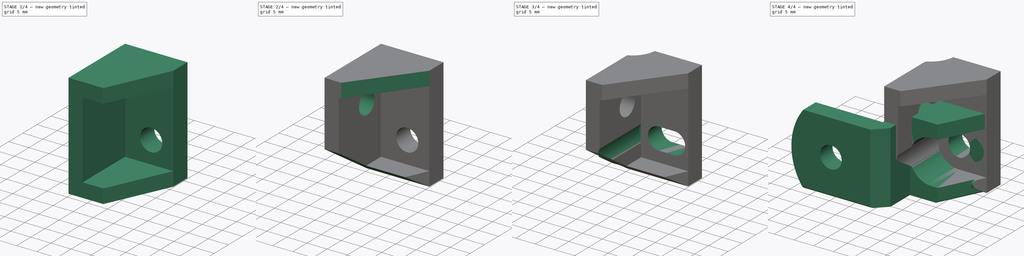
[diagram: build sequence overview — one tinted view per stage of 4, left to right]
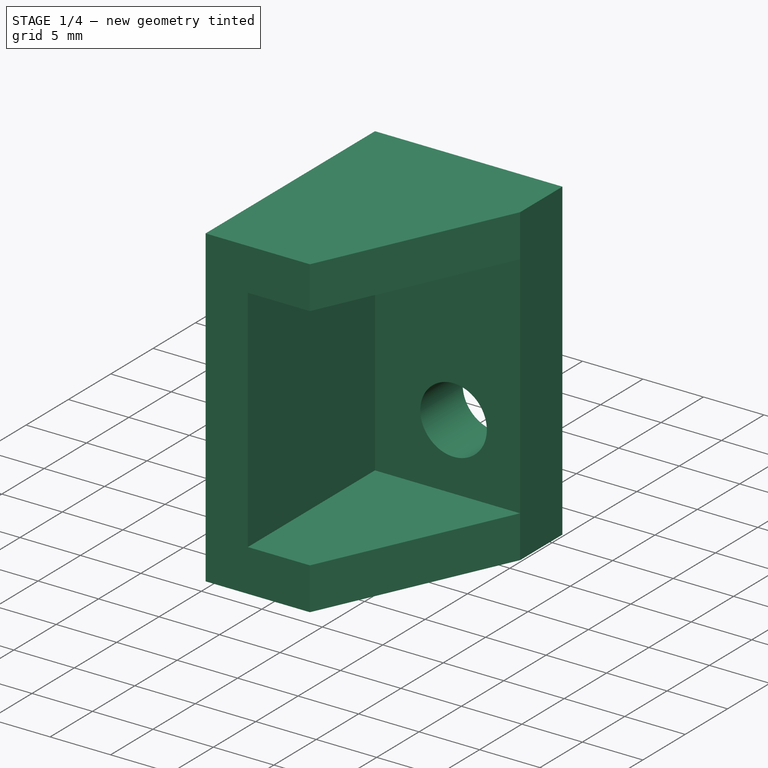
[diagram: stage 1 of 4 — iso view after this stage's code; geometry added in this stage tinted green]
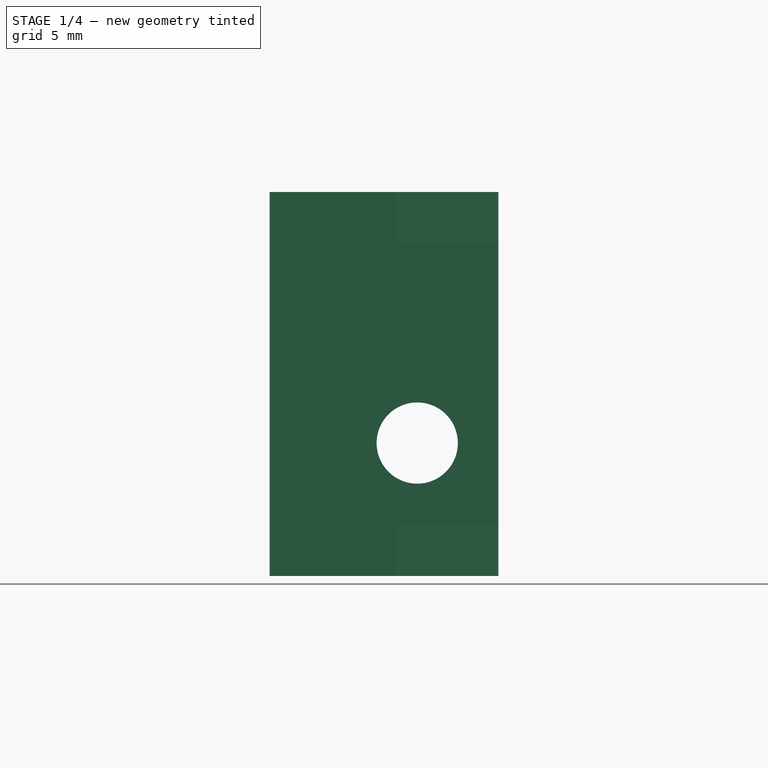
[diagram: stage 1 of 4 — front view after this stage's code; geometry added in this stage tinted green]
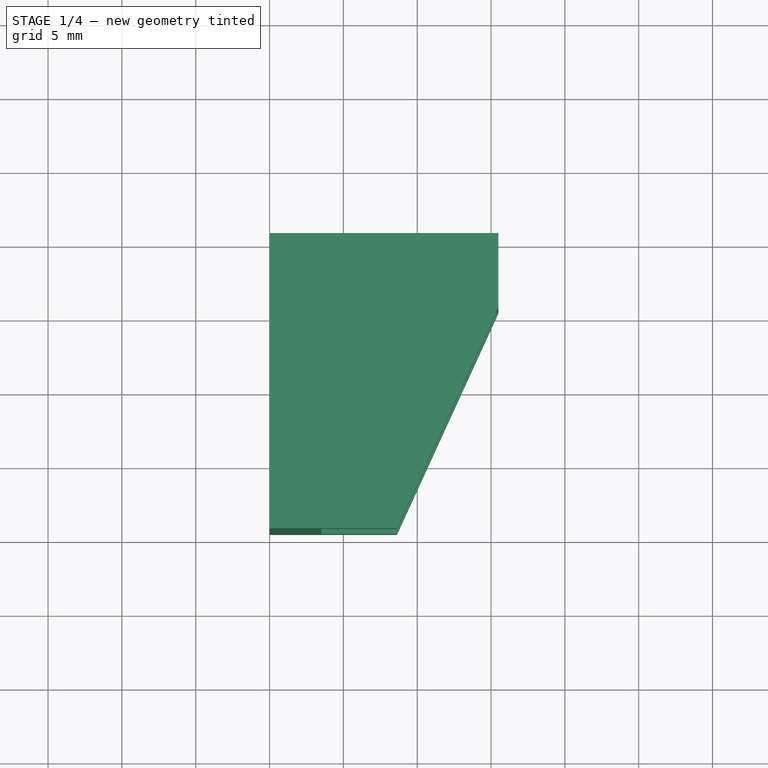
[diagram: stage 1 of 4 — top view after this stage's code; geometry added in this stage tinted green]
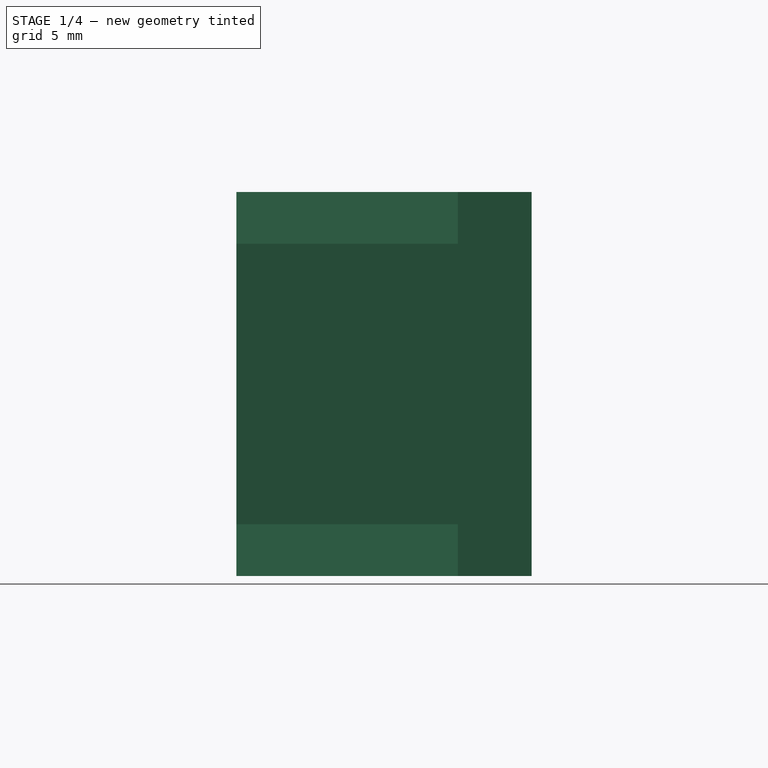
[diagram: stage 1 of 4 — right view after this stage's code; geometry added in this stage tinted green]
FCSTD DOCUMENT  (FreeCAD 0.18R4 (GitTag))
Label: electronics_chassis_mount_back_v1.1
License: All rights reserved
LicenseURL: http://en.wikipedia.org/wiki/All_rights_reserved
objects: Sketcher::SketchObject×10, PartDesign::Pocket×8, PartDesign::Pad×2, Part::FeaturePython×1, App::MeasureDistance×1, PartDesign::Chamfer×1, PartDesign::Fillet×1, PartDesign::Body×1
note: 34 computed .brp shape members not serialized (recipe doc carries the construction recipe); baked Part::Feature solids carry a one-line shape summary decoded from their .brp

FEATURE [Sketcher::SketchObject] Sketch
  MapMode = 5
  Support = -> [XY_Plane]
  sketch-geometry (5):
    g0: LineSegment StartX=0 StartY=20.5 StartZ=0 EndX=15.5 EndY=20.5 EndZ=0
    g1: LineSegment StartX=15.5 StartY=20.5 StartZ=0 EndX=15.5 EndY=15.5 EndZ=0
    g2: LineSegment StartX=15.5 StartY=15.5 StartZ=0 EndX=8.625 EndY=0.5 EndZ=0
    g3: LineSegment StartX=8.625 StartY=0.5 StartZ=0 EndX=0 EndY=0.5 EndZ=0
    g4: LineSegment StartX=0 StartY=0.5 StartZ=0 EndX=0 EndY=20.5 EndZ=0
  constraints (15):
    c: PointOnObject(g0,g-2)
    c: Horizontal(g0)
    c: Coincident(g0,g1)
    c: Vertical(g1)
    c: Coincident(g1,g2)
    c: Coincident(g2,g3)
    c: PointOnObject(g3,g-2)
    c: Horizontal(g3)
    c: Coincident(g3,g4)
    c: Coincident(g4,g0)
    c: DistanceY(g4,g4) = 20
    c: DistanceY(g3) = 0.5
    c: DistanceX(g0,g0) = 15.5
    c: DistanceY(g1,g1) = 5
    c: DistanceX(g3,g3) = 8.625
FEATURE [PartDesign::Pad] Pad
  Length = 26
  Length2 = 100
  Profile = -> Sketch
  Type = 0
FEATURE [Sketcher::SketchObject] Sketch001
  ExternalGeometry = -> [Pad]
  MapMode = 5
  Placement = pos=(0,0.5,0) rot=(1,0,0;1.5708rad)
  Support = -> [Pad]
  sketch-geometry (4):
    g0: LineSegment StartX=15.5 StartY=3.5 StartZ=0 EndX=3.5 EndY=3.5 EndZ=0
    g1: LineSegment StartX=3.5 StartY=3.5 StartZ=0 EndX=3.5 EndY=22.5 EndZ=0
    g2: LineSegment StartX=3.5 StartY=22.5 StartZ=0 EndX=15.5 EndY=22.5 EndZ=0
    g3: LineSegment StartX=15.5 StartY=22.5 StartZ=0 EndX=15.5 EndY=3.5 EndZ=0
  constraints (12):
    c: Coincident(g0,g1)
    c: Coincident(g1,g2)
    c: Coincident(g2,g3)
    c: Coincident(g3,g0)
    c: Horizontal(g0)
    c: Horizontal(g2)
    c: Vertical(g1)
    c: Vertical(g3)
    c: PointOnObject(g0,g-4)
    c: DistanceY(g-4,g0) = 3.5
    c: DistanceY(g3,g3) = 19
    c: DistanceX(g2,g2) = 12
FEATURE [PartDesign::Pocket] Pocket
  BaseFeature = -> Pad
  Length = 15
  Length2 = 100
  Profile = -> Sketch001
  Type = 0
FEATURE [Sketcher::SketchObject] Sketch003
  ExternalGeometry = -> [Pocket]
  MapMode = 5
  Placement = pos=(0,15.5,-3.4e-15) rot=(1,0,0;1.5708rad)
  Support = -> [Pocket]
  sketch-geometry (1):
    g0: Circle CenterX=10 CenterY=9 CenterZ=0 NormalX=0 NormalY=0 NormalZ=1 AngleXU=0 Radius=2.75
  constraints (3):
    c: Radius(g0) = 2.75
    c: DistanceX(g0) = 10
    c: DistanceY(g-3,g0) = 5.5
FEATURE [PartDesign::Pocket] Pocket001
  BaseFeature = -> Pocket
  Length = 5
  Length2 = 100
  Profile = -> Sketch003
  Type = 0
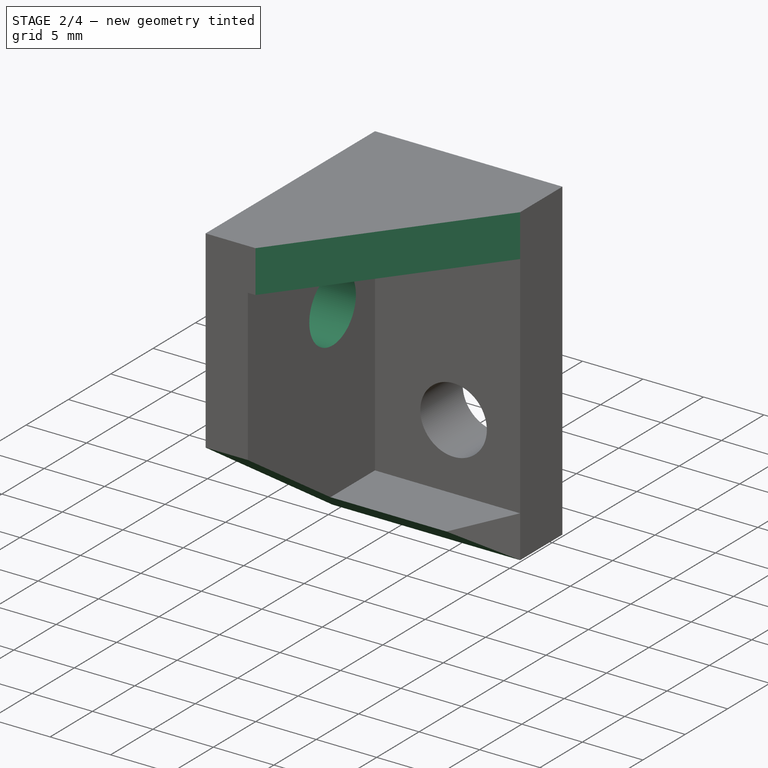
[diagram: stage 2 of 4 — iso view after this stage's code; geometry added in this stage tinted green]
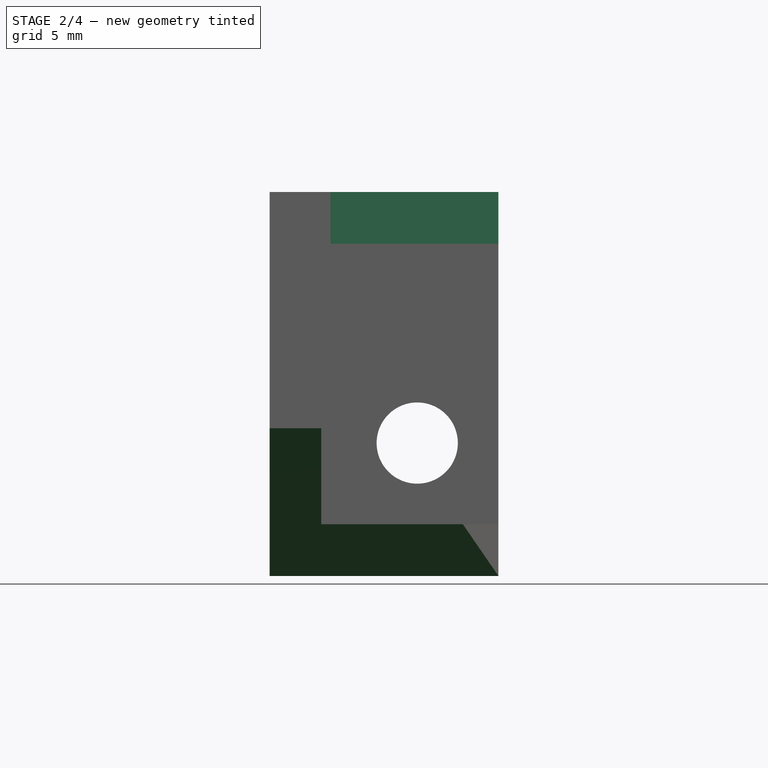
[diagram: stage 2 of 4 — front view after this stage's code; geometry added in this stage tinted green]
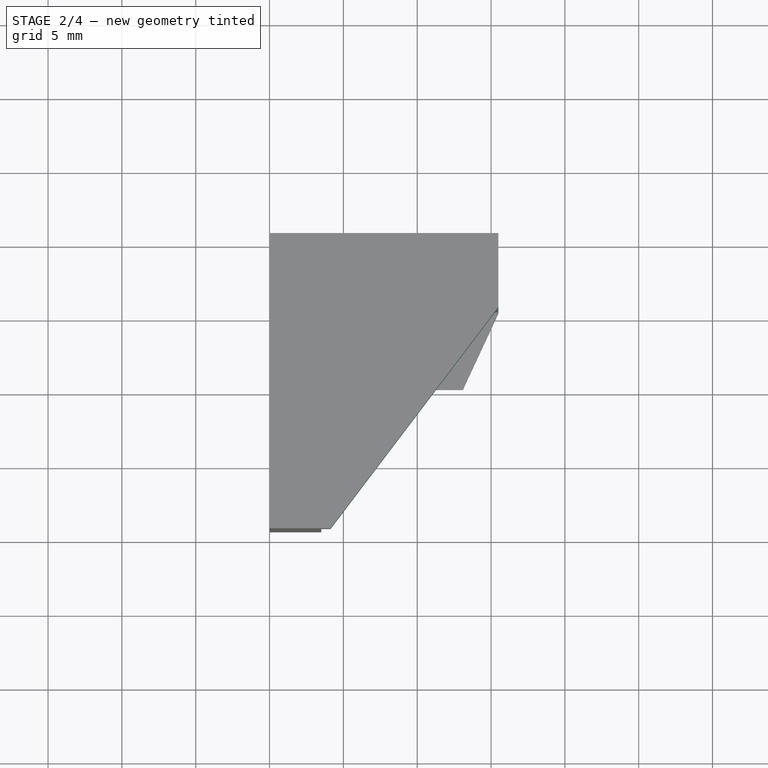
[diagram: stage 2 of 4 — top view after this stage's code; geometry added in this stage tinted green]
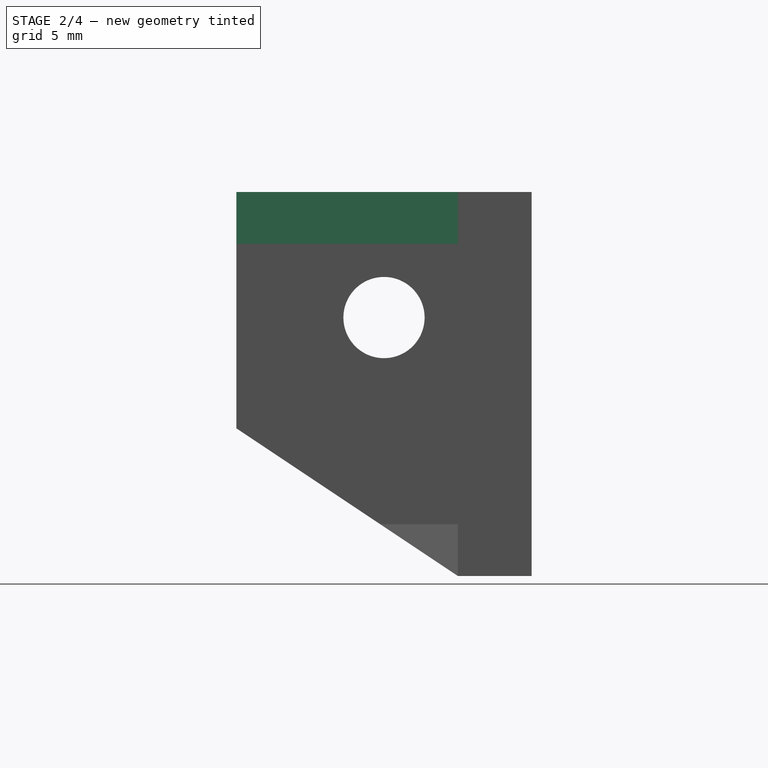
[diagram: stage 2 of 4 — right view after this stage's code; geometry added in this stage tinted green]
FEATURE [Sketcher::SketchObject] Sketch004
  ExternalGeometry = -> [Pocket001]
  MapMode = 5
  Placement = pos=(3.5,0,0) rot=(0.57735,0.57735,0.57735;2.0944rad)
  Support = -> [Pocket001]
  sketch-geometry (2):
    g0: Circle [constr] CenterX=10.5 CenterY=17.5 CenterZ=0 NormalX=0 NormalY=0 NormalZ=1 AngleXU=0 Radius=4.5
    g1: Circle CenterX=10.5 CenterY=17.5 CenterZ=0 NormalX=0 NormalY=0 NormalZ=1 AngleXU=0 Radius=2.75
  constraints (5):
    c: Radius(g0) = 4.5
    c: DistanceY(g0) = 17.5
    c: Coincident(g1,g0)
    c: Radius(g1) = 2.75
    c: DistanceX(g1,g-3) = 10
FEATURE [PartDesign::Pocket] Pocket002
  BaseFeature = -> Pocket001
  Length = 5
  Length2 = 100
  Profile = -> Sketch004
  Type = 0
FEATURE [Sketcher::SketchObject] Sketch005
  MapMode = 5
  Placement = pos=(15.5,0,0) rot=(0.57735,0.57735,0.57735;2.0944rad)
  Support = -> [Pocket002]
  sketch-geometry (3):
    g0: LineSegment StartX=15.5 StartY=0 StartZ=0 EndX=0.5 EndY=10 EndZ=0
    g1: LineSegment StartX=0.5 StartY=10 StartZ=0 EndX=0.5 EndY=0 EndZ=0
    g2: LineSegment StartX=0.5 StartY=0 StartZ=0 EndX=15.5 EndY=0 EndZ=0
  constraints (9):
    c: Coincident(g0,g1)
    c: Coincident(g1,g2)
    c: Coincident(g2,g0)
    c: DistanceY(g1,g1) = 10
    c: PointOnObject(g0,g-1)
    c: DistanceX(g1) = 0.5
    c: DistanceX(g2,g2) = 15
    c: Vertical(g1)
    c: Horizontal(g2)
FEATURE [PartDesign::Pocket] Pocket003
  BaseFeature = -> Pocket002
  Length = 5
  Length2 = 100
  Profile = -> Sketch005
  Type = 1
FEATURE [Sketcher::SketchObject] Sketch006
  ExternalGeometry = -> [Pocket003]
  MapMode = 5
  Placement = pos=(0,0,26) rot=(0,0,1;0rad)
  Support = -> [Pocket003]
  sketch-geometry (3):
    g0: LineSegment StartX=4.125 StartY=0.5 StartZ=0 EndX=15.5 EndY=15.5 EndZ=0
    g1: LineSegment StartX=15.5 StartY=15.5 StartZ=0 EndX=8.625 EndY=0.5 EndZ=0
    g2: LineSegment StartX=8.625 StartY=0.5 StartZ=0 EndX=4.125 EndY=0.5 EndZ=0
  constraints (7):
    c: Coincident(g0,g1)
    c: Coincident(g1,g2)
    c: Coincident(g2,g0)
    c: Coincident(g0,g-3)
    c: Coincident(g1,g-3)
    c: Horizontal(g2)
    c: DistanceX(g2,g2) = 4.5
FEATURE [PartDesign::Pocket] Pocket004
  BaseFeature = -> Pocket003
  Length = 5
  Length2 = 100
  Profile = -> Sketch006
  Type = 0
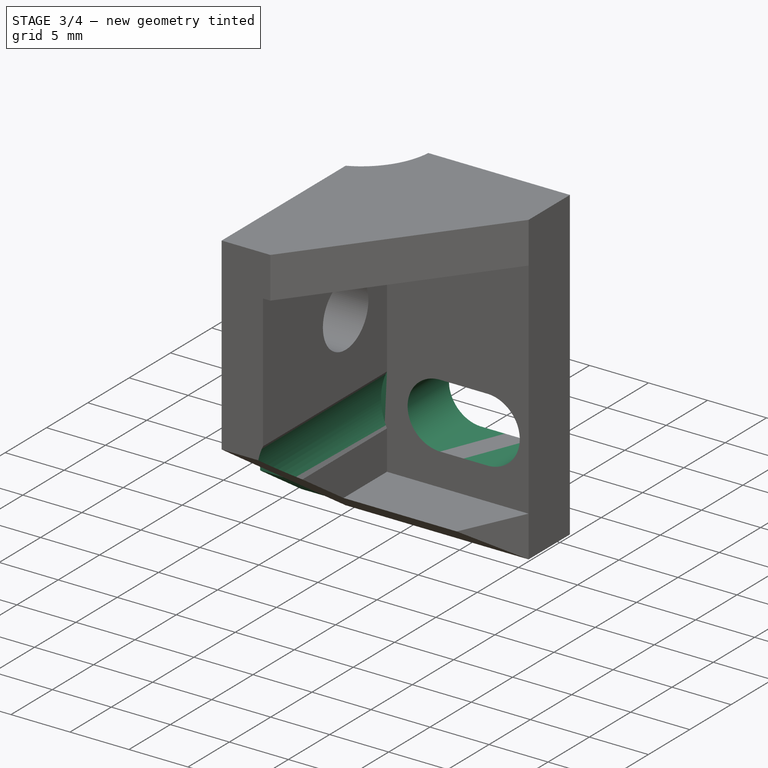
[diagram: stage 3 of 4 — iso view after this stage's code; geometry added in this stage tinted green]
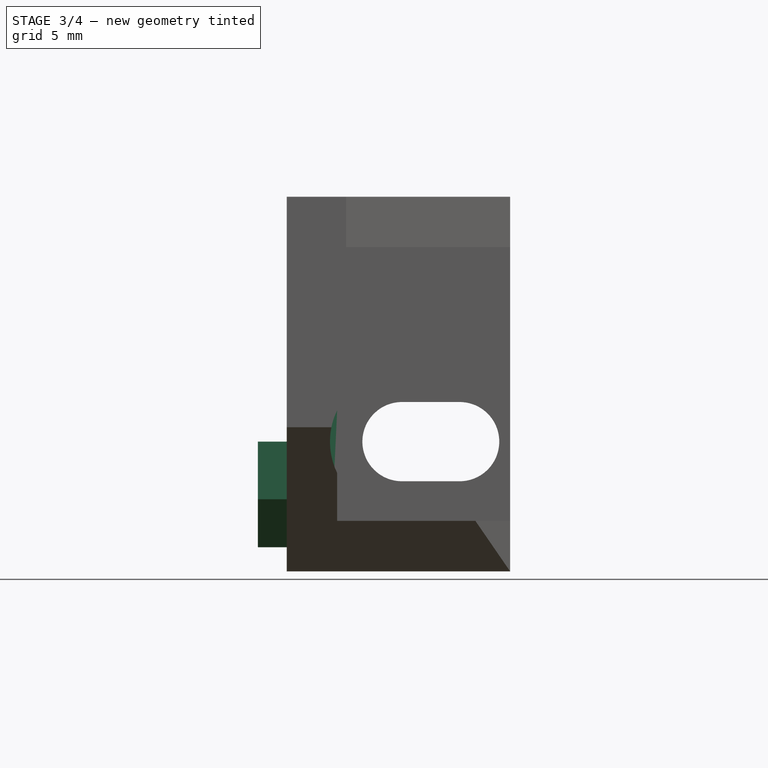
[diagram: stage 3 of 4 — front view after this stage's code; geometry added in this stage tinted green]
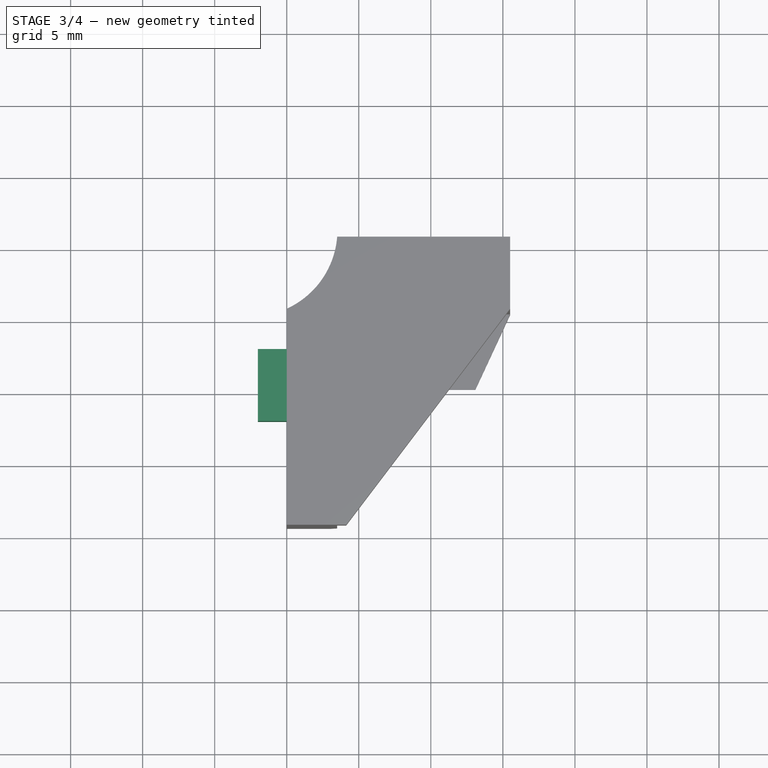
[diagram: stage 3 of 4 — top view after this stage's code; geometry added in this stage tinted green]
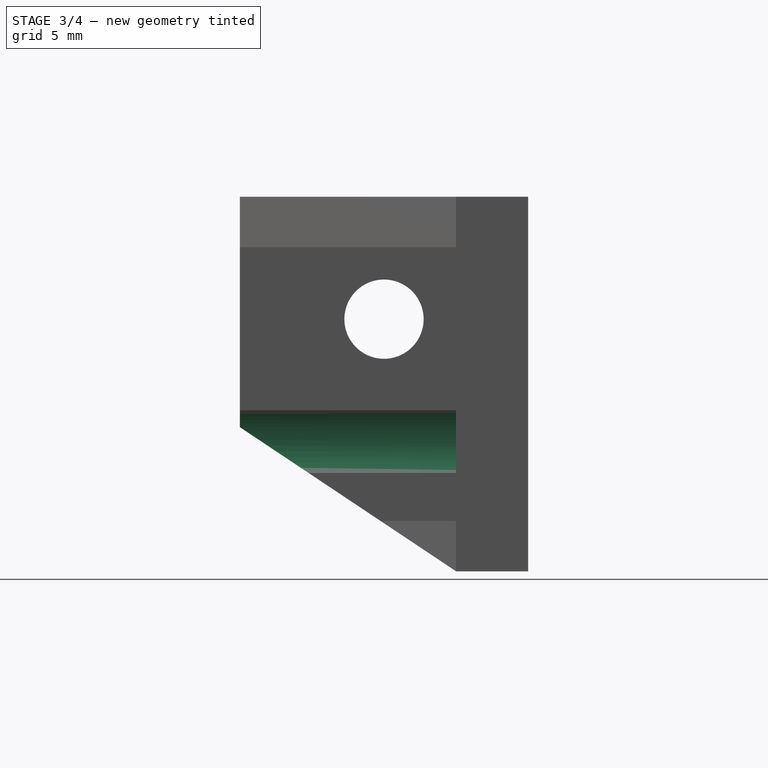
[diagram: stage 3 of 4 — right view after this stage's code; geometry added in this stage tinted green]
FEATURE [Sketcher::SketchObject] Sketch007
  ExternalGeometry = -> [Pocket004]
  MapMode = 5
  Placement = pos=(0,0,0) rot=(0.57735,-0.57735,-0.57735;2.0944rad)
  sketch-geometry (4):
    g0: LineSegment StartX=-13 StartY=1.66667 StartZ=0 EndX=-13 EndY=9 EndZ=0
    g1: LineSegment StartX=-13 StartY=9 StartZ=0 EndX=-8 EndY=9 EndZ=0
    g2: LineSegment StartX=-8 StartY=9 StartZ=0 EndX=-8 EndY=5 EndZ=0
    g3: LineSegment StartX=-8 StartY=5 StartZ=0 EndX=-13 EndY=1.66667 EndZ=0
  constraints (12):
    c: Coincident(g0,g1)
    c: Coincident(g1,g2)
    c: Coincident(g2,g3)
    c: Coincident(g0,g3)
    c: Vertical(g0)
    c: Vertical(g2)
    c: Horizontal(g1)
    c: DistanceX(g1,g1) = 5
    c: DistanceY(g2,g2) = 4
    c: DistanceX(g0,g-4) = 2.5
    c: PointOnObject(g0,g-3)
    c: PointOnObject(g2,g-3)
FEATURE [PartDesign::Pad] Pad001
  BaseFeature = -> Pocket004
  Length = 2
  Length2 = 100
  Profile = -> Sketch007
  Type = 0
FEATURE [Sketcher::SketchObject] Sketch008
  MapMode = 5
  Placement = pos=(0,0,0) rot=(1,0,0;3.14159rad)
  Support = -> [Pad001]
  sketch-geometry (3):
    g0: ArcOfCircle CenterX=-2.48215 CenterY=-20.9625 CenterZ=0 NormalX=0 NormalY=0 NormalZ=1 AngleXU=0 Radius=6 StartAngle=0.0771604 EndAngle=1.14429
    g1: LineSegment StartX=-1.5388e-12 StartY=-15.5 StartZ=0 EndX=-1.5388e-12 EndY=-20.5 EndZ=0
    g2: LineSegment StartX=-1.5388e-12 StartY=-20.5 StartZ=0 EndX=3.5 EndY=-20.5 EndZ=0
  constraints (10):
    c: Coincident(g1,g2)
    c: Coincident(g0,g2)
    c: DistanceX(g2,g2) = 3.5
    c: Radius(g0) = 6
    c: Coincident(g0,g1)
    c: PointOnObject(g1,g-2)
    c: DistanceY(g1) = -20.5
    c: Vertical(g1)
    c: Horizontal(g2)
    c: DistanceY(g1,g1) = 5
FEATURE [App::MeasureDistance] Distance  label="Distance: 2.21 mm"
  Distance = 2.21402
  P1 = (3.5,9.01305,22.4321)
  P2 = (3.5,8.63819,20.25)
FEATURE [PartDesign::Pocket] Pocket005
  BaseFeature = -> Pad001
  Length = 5
  Length2 = 100
  Profile = -> Sketch008
  Type = 1
FEATURE [Sketcher::SketchObject] Sketch009
  ExternalGeometry = -> [Pocket005]
  MapMode = 5
  Placement = pos=(0,15.5,-3.4e-15) rot=(1,0,0;1.5708rad)
  Support = -> [Pocket005]
  sketch-geometry (4):
    g0: ArcOfCircle CenterX=12 CenterY=9 CenterZ=0 NormalX=0 NormalY=0 NormalZ=1 AngleXU=0 Radius=2.75 StartAngle=4.71239 EndAngle=7.85398
    g1: ArcOfCircle CenterX=8 CenterY=9 CenterZ=0 NormalX=0 NormalY=0 NormalZ=1 AngleXU=0 Radius=2.75 StartAngle=1.5708 EndAngle=4.71239
    g2: LineSegment StartX=12 StartY=11.75 StartZ=0 EndX=8 EndY=11.75 EndZ=0
    g3: LineSegment StartX=12 StartY=6.25 StartZ=0 EndX=8 EndY=6.25 EndZ=0
  constraints (10):
    c: Tangent(g0,g3) = 1.5708
    c: Tangent(g0,g2) = -1.5708
    c: Tangent(g2,g1) = -1.5708
    c: Tangent(g3,g1) = 1.5708
    c: Horizontal(g2)
    c: Equal(g0,g1)
    c: DistanceX(g1,g0) = 4
    c: DistanceX(g0) = 12
    c: Equal(g1,g-3)
    c: DistanceY(g1,g-3) = 0
FEATURE [PartDesign::Pocket] Pocket006
  BaseFeature = -> Pocket005
  Length = 5
  Length2 = 100
  Profile = -> Sketch009
  Type = 0
FEATURE [Sketcher::SketchObject] Sketch010
  ExternalGeometry = -> [Pocket006]
  MapMode = 5
  Placement = pos=(0,0.5,0) rot=(1,0,0;1.5708rad)
  Support = -> [Pocket006]
  sketch-geometry (1):
    g0: Circle CenterX=8 CenterY=9 CenterZ=0 NormalX=0 NormalY=0 NormalZ=1 AngleXU=0 Radius=5
  constraints (2):
    c: Radius(g0) = 5
    c: Coincident(g0,g-3)
FEATURE [PartDesign::Pocket] Pocket007
  BaseFeature = -> Pocket006
  Length = 15
  Length2 = 100
  Profile = -> Sketch010
  Type = 0
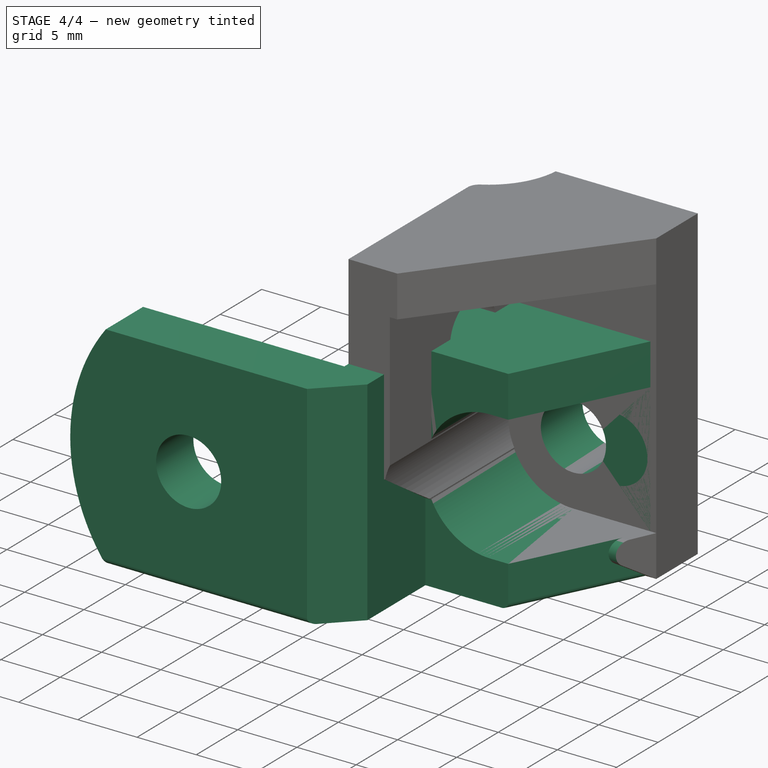
[diagram: stage 4 of 4 — iso view after this stage's code; geometry added in this stage tinted green]
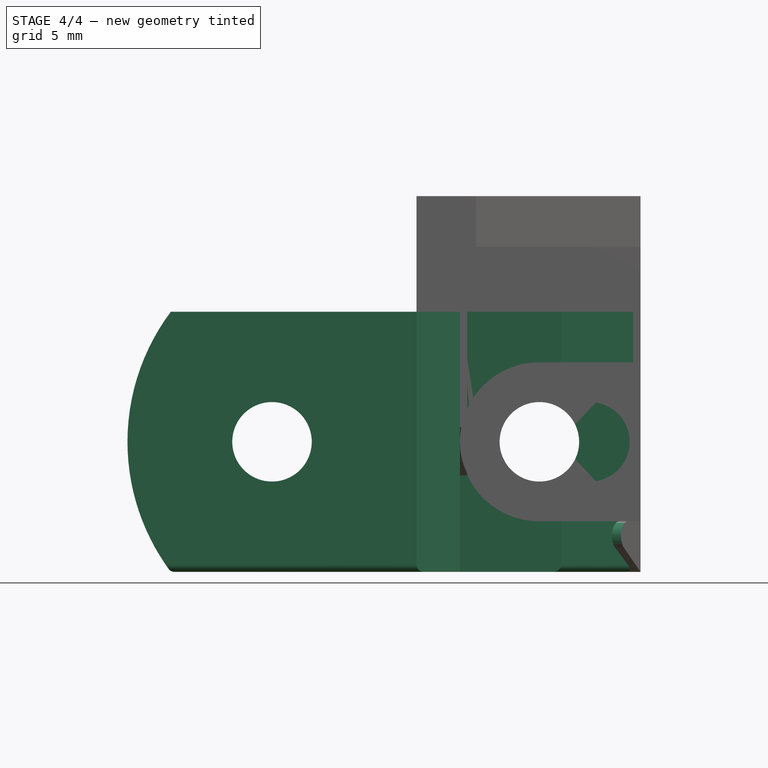
[diagram: stage 4 of 4 — front view after this stage's code; geometry added in this stage tinted green]
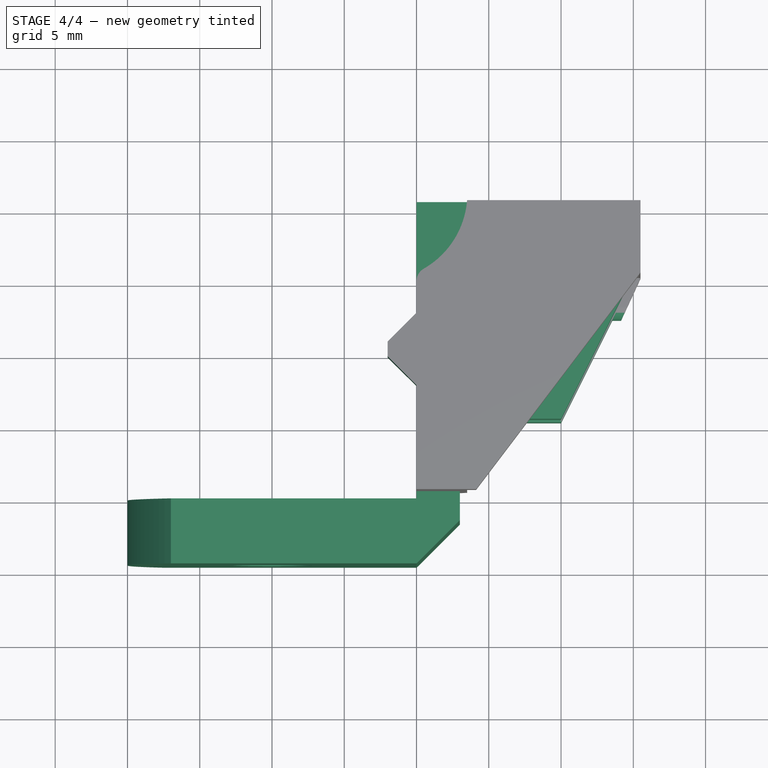
[diagram: stage 4 of 4 — top view after this stage's code; geometry added in this stage tinted green]
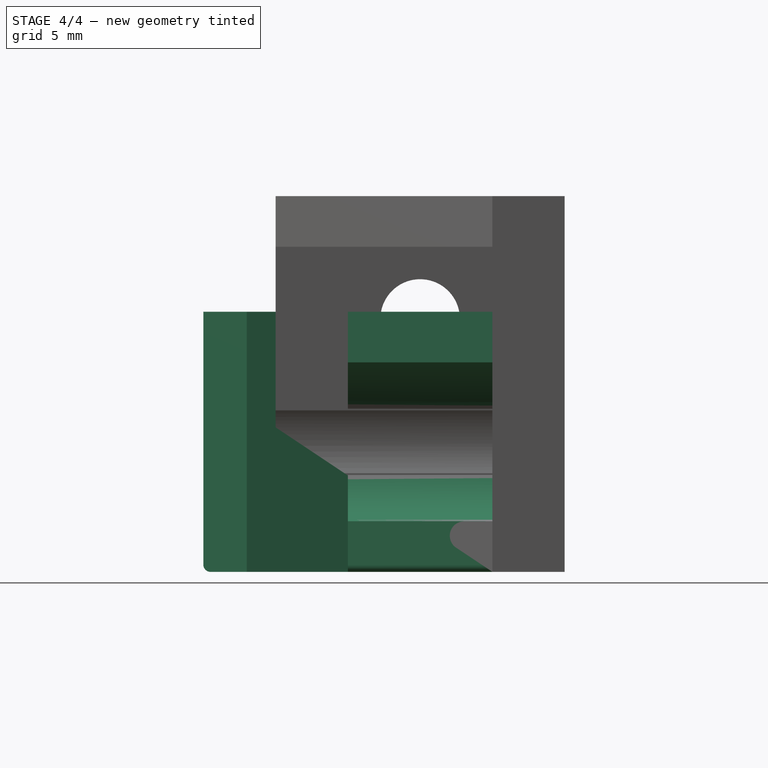
[diagram: stage 4 of 4 — right view after this stage's code; geometry added in this stage tinted green]
FEATURE [Part::FeaturePython] electronics_chassis_mount_01  # a2plus imported part (geometry in sourceFile) (typed FeaturePython)
  fixedPosition = true
  sourceFile = <userpath>/Projects/taz-quiver/Production_parts/Printed_parts/X/electronics_chassis_mount/electronics_chassis_mount.fcstd
  timeLastImport = 1.5138e+09
  updateColors = true
FEATURE [PartDesign::Chamfer] Chamfer
  Base = -> Pocket007 [Edge72,Edge75]
  BaseFeature = -> Pocket007
  Size = 1.99
FEATURE [PartDesign::Fillet] Fillet
  Base = -> Chamfer [Edge13,Edge27]
  BaseFeature = -> Chamfer
  Radius = 1
FEATURE [PartDesign::Body] Body
  Group = -> [Sketch,Pad,Sketch001,Sketch003,Sketch004,Sketch005,Sketch006,Sketch007,Sketch008,Sketch009,Sketch010,Pocket,Pocket001,Pocket002,Pocket003,Pocket004,Pad001,Pocket005,Pocket006,Pocket007,Chamfer,Fillet]
  Origin = -> Origin
  Tip = -> Fillet
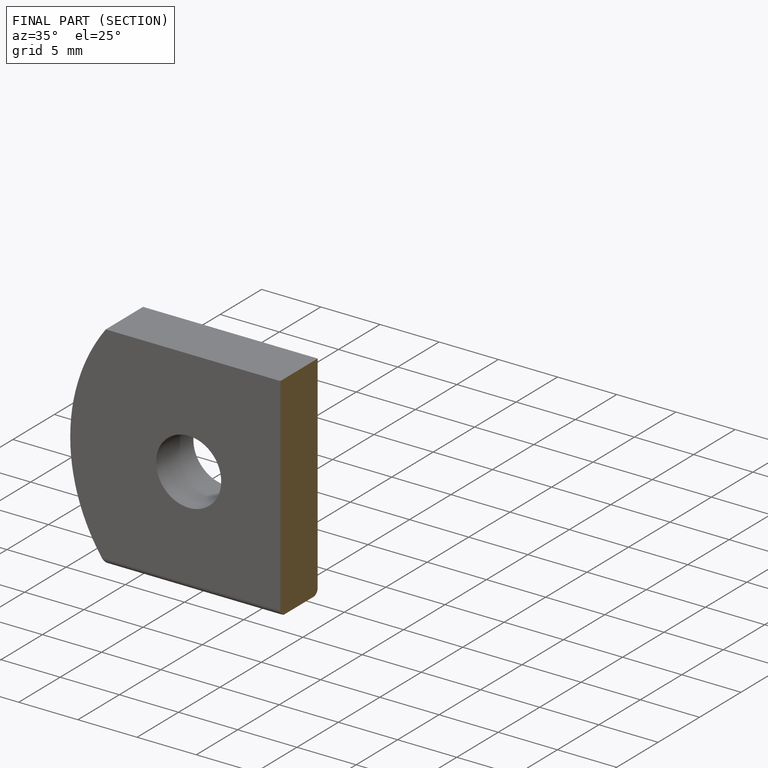
[diagram: finished part — half-section view (interior)]
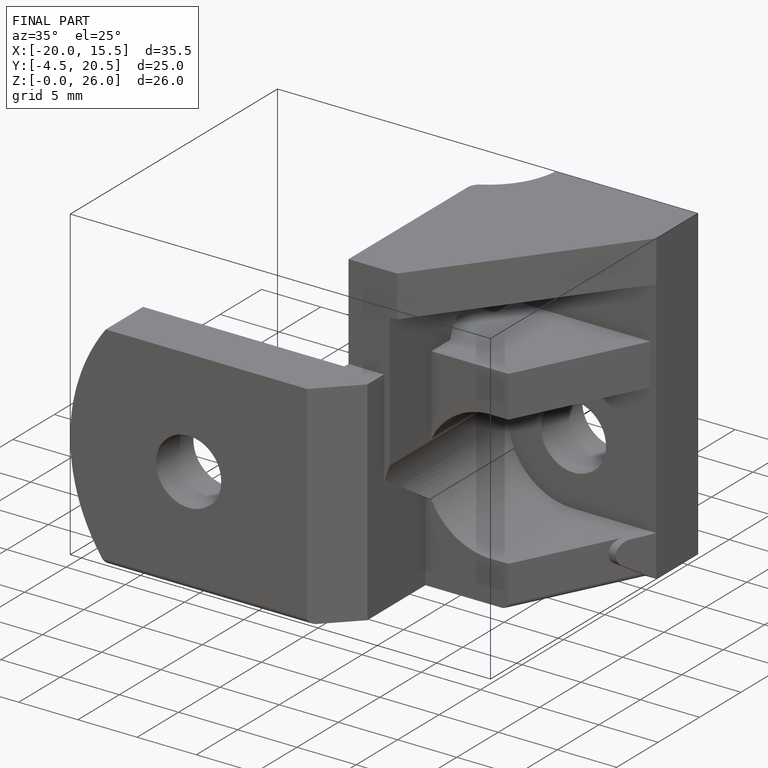
[diagram: finished part — iso view with bounding-box wireframe]
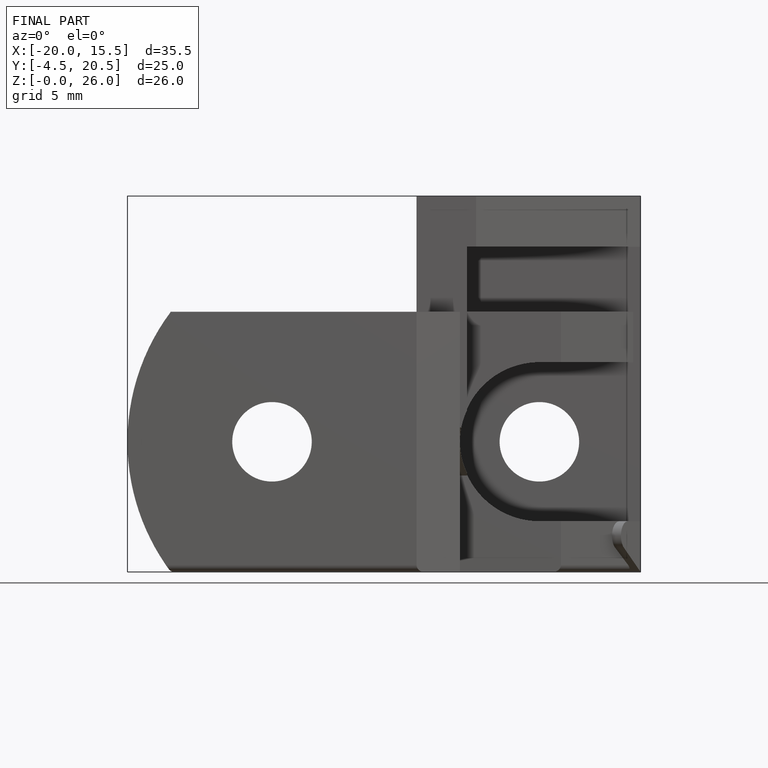
[diagram: finished part — front view with bounding-box wireframe]
